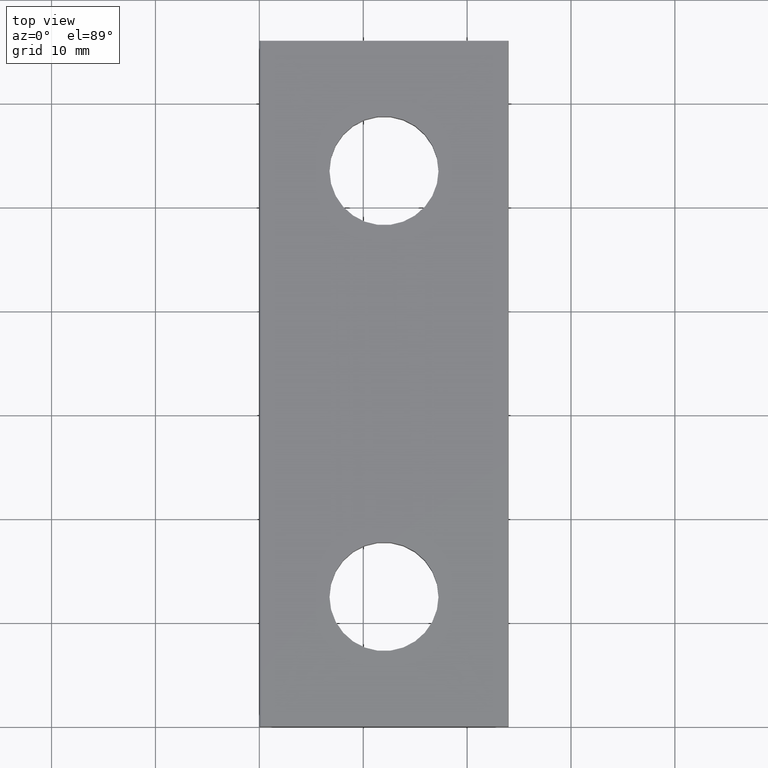
[diagram: clean part render]
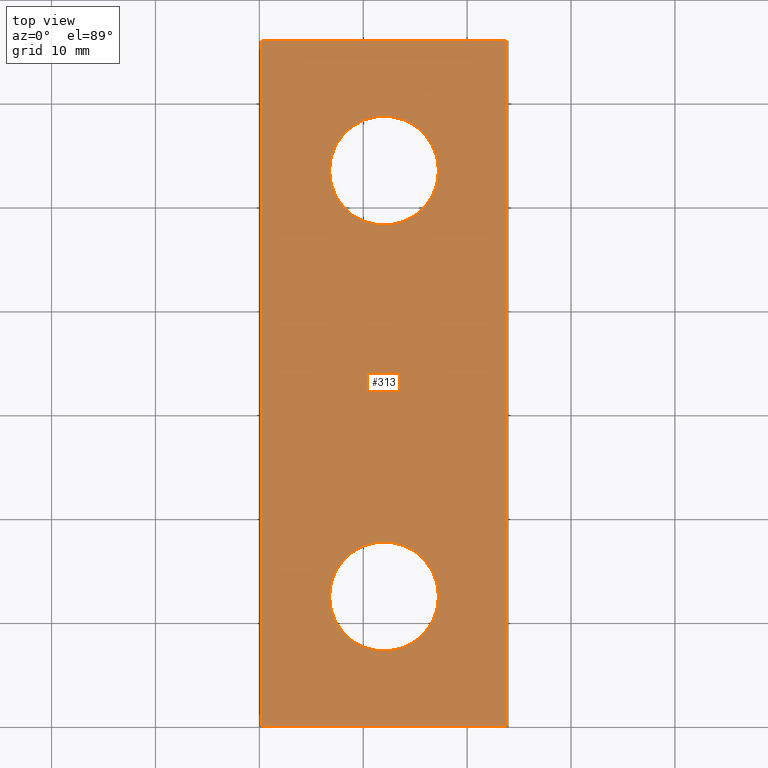
[diagram: same view with one face highlighted and labeled with its STEP entity id]
A machine part, top view. The second image highlights one B-rep face of the part: STEP entity #313.
In plain terms, the highlighted planar face has unit normal (0, 0, -1).
Its self-contained STEP definition (entity closure, byte-faithful):
#25=PLANE('',#342);
#28=LINE('',#423,#44);
#32=LINE('',#441,#48);
#37=LINE('',#455,#53);
#40=LINE('',#460,#56);
#44=VECTOR('',#357,1000.);
#48=VECTOR('',#373,1000.);
#53=VECTOR('',#388,1000.);
#56=VECTOR('',#395,1000.);
#108=ORIENTED_EDGE('',*,*,#140,.T.);
#109=ORIENTED_EDGE('',*,*,#130,.T.);
#110=ORIENTED_EDGE('',*,*,#135,.T.);
#111=ORIENTED_EDGE('',*,*,#119,.F.);
#112=ORIENTED_EDGE('',*,*,#138,.T.);
#113=ORIENTED_EDGE('',*,*,#127,.F.);
#119=EDGE_CURVE('',#146,#148,#28,.T.);
#127=EDGE_CURVE('',#154,#156,#32,.T.);
#130=EDGE_CURVE('',#158,#158,#170,.T.);
#135=EDGE_CURVE('',#154,#148,#37,.T.);
#138=EDGE_CURVE('',#146,#156,#40,.T.);
#140=EDGE_CURVE('',#160,#160,#172,.T.);
#146=VERTEX_POINT('',#421);
#148=VERTEX_POINT('',#424);
#154=VERTEX_POINT('',#439);
#156=VERTEX_POINT('',#442);
#158=VERTEX_POINT('',#448);
#160=VERTEX_POINT('',#465);
#170=CIRCLE('',#332,5.25);
#172=CIRCLE('',#339,5.25);
#189=EDGE_LOOP('',(#108));
#190=EDGE_LOOP('',(#109));
#191=EDGE_LOOP('',(#110,#111,#112,#113));
#207=FACE_BOUND('',#189,.T.);
#208=FACE_BOUND('',#190,.T.);
#209=FACE_BOUND('',#191,.T.);
#313=ADVANCED_FACE('',(#207,#208,#209),#25,.F.);
#332=AXIS2_PLACEMENT_3D('',#447,#379,#380);
#339=AXIS2_PLACEMENT_3D('',#464,#401,#402);
#342=AXIS2_PLACEMENT_3D('',#469,#407,#408);
#357=DIRECTION('',(1.31371731030452E-46,1.,1.49186218934005E-16));
#373=DIRECTION('',(-1.31371731030452E-46,-1.,-1.49186218934005E-16));
#379=DIRECTION('',(1.49186218934005E-16,1.49186218934005E-16,-1.));
#380=DIRECTION('',(-1.,2.2256527919825E-32,-1.49186218934005E-16));
#388=DIRECTION('',(-1.,2.2256527919825E-32,-1.49186218934005E-16));
#395=DIRECTION('',(1.,-2.2256527919825E-32,1.49186218934005E-16));
#401=DIRECTION('',(1.49186218934005E-16,1.49186218934005E-16,-1.));
#402=DIRECTION('',(-1.,2.2256527919825E-32,-1.49186218934005E-16));
#407=DIRECTION('',(1.49186218934005E-16,1.49186218934005E-16,-1.));
#408=DIRECTION('',(-1.,2.2256527919825E-32,-1.49186218934005E-16));
#421=CARTESIAN_POINT('',(0.2,-1.75826570566617E-32,4.99999999999973));
#423=CARTESIAN_POINT('',(0.2,-2.9837243786801E-17,4.99999999999973));
#424=CARTESIAN_POINT('',(0.199999999999999,66.,4.99999999999974));
#439=CARTESIAN_POINT('',(23.8,66.,4.99999999999975));
#441=CARTESIAN_POINT('',(23.8,66.,4.99999999999974));
#442=CARTESIAN_POINT('',(23.8,-5.42836715964532E-31,4.99999999999973));
#447=CARTESIAN_POINT('',(12.,12.5,4.99999999999973));
#448=CARTESIAN_POINT('',(6.75,12.5,4.99999999999973));
#455=CARTESIAN_POINT('',(24.59,66.,4.99999999999975));
#460=CARTESIAN_POINT('',(-0.589999999999997,0.,4.99999999999973));
#464=CARTESIAN_POINT('',(12.,53.5,4.99999999999974));
#465=CARTESIAN_POINT('',(6.75,53.5,4.99999999999974));
#469=CARTESIAN_POINT('',(22.125,53.600000003813,4.99999999999974));